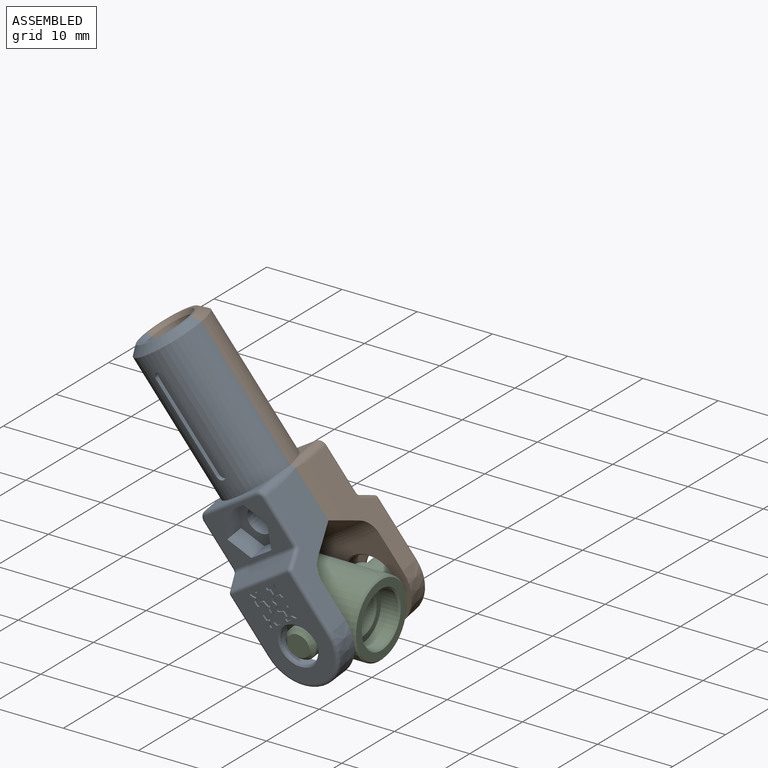
[diagram: assembled view]
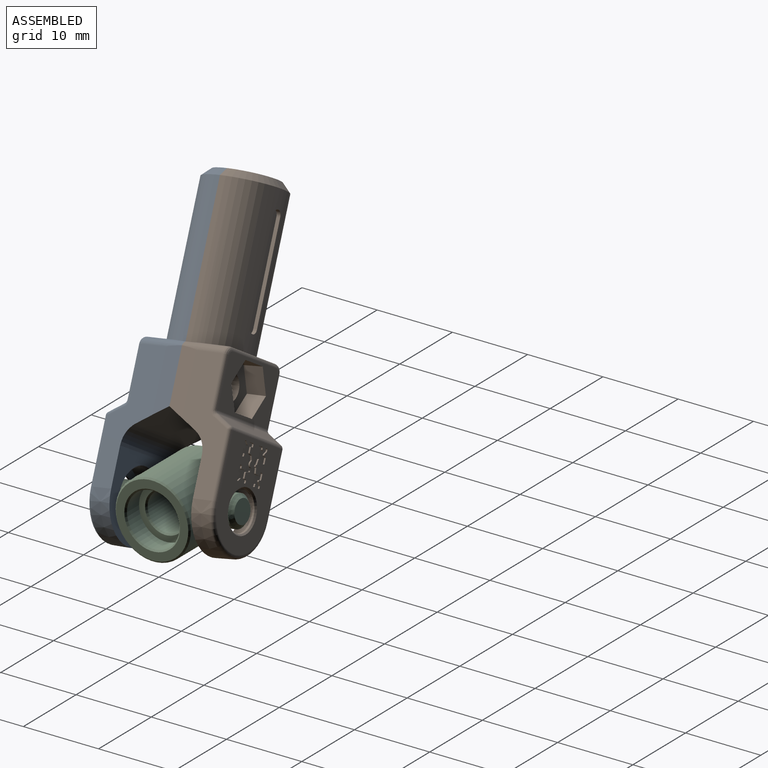
[diagram: assembled view, second angle]
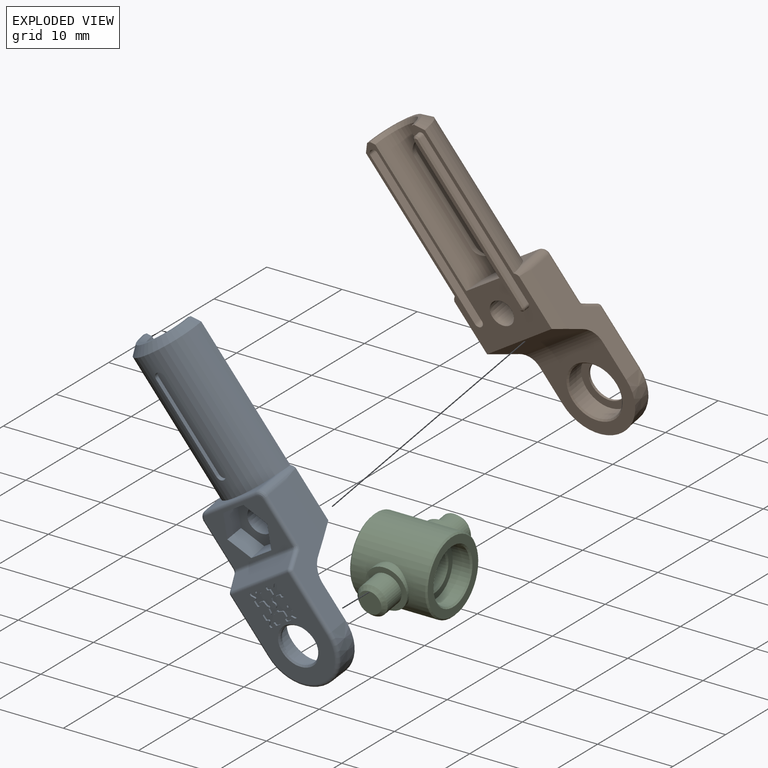
[diagram: exploded view]
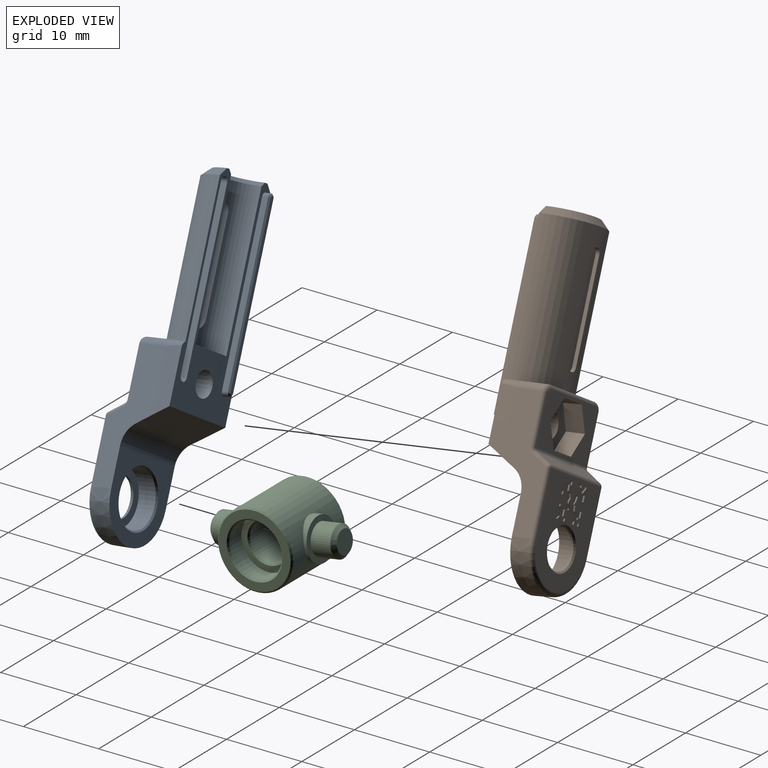
[diagram: exploded view, second angle]
ASSEMBLY  parts=3 mates=2
PART A: 228 faces, bbox 42.5x9.5x11.5 mm
  f0: plane 27x11mm, normal (0,-1,0), area 100.7mm2, adj f1,f2,f3,f4,f11,f16,f19,f20
  f1: plane 7.99x2mm, normal (0,0,1), area 14.6mm2, adj f0,f2,f9,f21
  f2: plane 11x2mm, normal (-0.87,-0.5,0), area 25.4mm2, adj f0,f1,f3,f14
  f3: plane 7.99x2mm, normal (0,0,-1), area 14.6mm2, adj f0,f2,f10,f20
  f4: plane 8x4mm, normal (1,0,0), area 5.9mm2, adj f0,f38,f39
  f5: cylinder r=3.5mm len=7mm, axis (0,-1,0), area 50.6mm2, adj f12,f60
  f6: plane 10.76x10.22mm, normal (0,-1,0), area 54.5mm2, adj f7,f9,f10,f58,f60
  f7: cone r=5.5mm half-angle=2deg, axis (0,-1,0), area 42.2mm2, adj f6,f9,f10,f28
  f8: plane 12.81x9.58mm, normal (0,1,0), area 79.8mm2, adj f23,f28,f31,f32,f59,f70,f71,f72
  f9: plane 16.24x6.04mm, normal (0,0.03,1), area 52.9mm2, adj f1,f6,f7,f14,f21,f23,f25,f26
  f10: plane 16.24x6.04mm, normal (0,0.03,-1), area 52.9mm2, adj f3,f6,f7,f14,f20,f32,f33,f36
  f11: cylinder r=3mm len=19.04mm, axis (1,0,0), area 134.4mm2, adj f0,f19,f38,f223,f224,f225,f226
  f12: plane 7x7mm, normal (0,-1,0), area 18.8mm2, adj f5,f13
  f13: cylinder r=2.5mm len=5mm, axis (0,1,0), area 4.7mm2, adj f12,f59
  f14: plane 11x2mm, normal (-0.87,-0.5,0), area 25.2mm2, adj f2,f9,f10,f58
  f15: plane 9.72x2mm, normal (0.87,0.5,0), area 22.3mm2, adj f26,f31,f34,f37
  f16: cylinder r=5mm len=18.63mm, axis (1,0,0), area 271.9mm2, adj f0,f18,f20,f21,f39,f65,f66,f67
  f17: plane 9.76x6.68mm, normal (0,1,0), area 35.1mm2, adj f22,f24,f25,f29,f33,f34,f40,f41
  f18: plane 8.99x3.31mm, normal (1,0,0), area 11.3mm2, adj f16,f20,f21,f24
  f19: plane 6x3mm, normal (1,0,0), area 14.1mm2, adj f0,f11
  f20: cylinder r=1mm len=5.57mm, axis (0,1,0.03), area 7.5mm2, adj f0,f3,f10,f16,f18,f29
  f21: cylinder r=1mm len=5.57mm, axis (0,-1,0.03), area 7.5mm2, adj f0,f1,f9,f16,f18,f22
  f22: bspline ~1x1mm, area 1mm2, adj f17,f21,f24,f25
  f23: cylinder r=0.5mm len=8.02mm, axis (1,0,0), area 6.2mm2, adj f8,f9,f27,f28
  f24: cylinder r=0.5mm len=8.75mm, axis (0,0,1), area 6.9mm2, adj f17,f18,f22,f29
  f25: cylinder r=0.5mm len=6.18mm, axis (-1,0,0), area 4.7mm2, adj f9,f17,f22,f30
  f26: cylinder r=0.5mm len=2.23mm, axis (-0.5,0.87,-0.03), area 1.8mm2, adj f9,f15,f27,f30
  f27: sphere r=0.5mm, area 0.3mm2, adj f23,f26,f31
  f28: torus R=4.79mm, axis (0,1,0), area 12.3mm2, adj f7,f8,f23,f32
  f29: bspline ~1.17x1.04mm, area 1mm2, adj f17,f20,f24,f33
  f30: bspline ~0.87x0.74mm, area 0.6mm2, adj f9,f25,f26,f34
  f31: cylinder r=0.5mm len=9.58mm, axis (0,0,-1), area 5mm2, adj f8,f15,f27,f35
  f32: cylinder r=0.5mm len=8.02mm, axis (-1,0,0), area 6.2mm2, adj f8,f10,f28,f35
  f33: cylinder r=0.5mm len=6.18mm, axis (-1,0,0), area 4.7mm2, adj f10,f17,f29,f36
  f34: cylinder r=0.5mm len=9.76mm, axis (0,0,-1), area 5.1mm2, adj f15,f17,f30,f36
  f35: sphere r=0.5mm, area 0.3mm2, adj f31,f32,f37
  f36: bspline ~0.87x0.73mm, area 0.6mm2, adj f10,f33,f34,f37
  f37: cylinder r=0.5mm len=2.23mm, axis (-0.5,0.87,0.03), area 1.8mm2, adj f10,f15,f35,f36
  f38: cone r=3mm half-angle=45deg, axis (1,0,0), area 7.2mm2, adj f0,f4,f11
  f39: cone r=4mm half-angle=45deg, axis (-1,0,0), area 20mm2, adj f0,f4,f16
  f40: plane 3.39x2.5mm, normal (-1,0.03,0), area 8.4mm2, adj f17,f41,f45,f46
  f41: plane 2.94x2.5mm, normal (-0.5,0.03,-0.87), area 8.4mm2, adj f17,f40,f42,f46
  f42: plane 2.94x2.5mm, normal (0.5,0.03,-0.87), area 8.4mm2, adj f17,f41,f43,f46
  f43: plane 3.39x2.5mm, normal (1,0.03,0), area 8.4mm2, adj f17,f42,f44,f46
  f44: plane 2.94x2.5mm, normal (0.5,0.03,0.87), area 8.4mm2, adj f17,f43,f45,f46
  f45: plane 2.94x2.5mm, normal (-0.5,0.03,0.87), area 8.4mm2, adj f17,f40,f44,f46
  f46: plane 6.58x5.7mm, normal (0,1,0), area 18.8mm2, adj f40,f41,f42,f43,f44,f45,f47
  f47: cone r=1.6mm half-angle=2deg, axis (0,1,0), area 36.6mm2, adj f0,f46
  f48: cone r=0.6mm half-angle=2deg, axis (0,-1,0), area 2.2mm2, adj f0,f49,f51,f52
  f49: plane 21.83x1.2mm, normal (0,-0.03,-1), area 26.2mm2, adj f0,f48,f50,f52
  f50: cone r=0.6mm half-angle=2deg, axis (0,-1,0), area 2.2mm2, adj f0,f49,f51,f52
  f51: plane 21.83x1.2mm, normal (0,-0.03,1), area 26.2mm2, adj f0,f48,f50,f52
  f52: plane 22.94x1.12mm, normal (0,-1,0), area 25.3mm2, adj f48,f49,f50,f51
  f53: cone r=0.5mm half-angle=2deg, axis (0,1,0), area 1.2mm2, adj f0,f54,f56,f62
  f54: plane 21.83x0.8mm, normal (0,-0.03,-1), area 17.5mm2, adj f0,f53,f55,f64
  f55: cone r=0.5mm half-angle=2deg, axis (0,1,0), area 1.2mm2, adj f0,f54,f56,f63
  f56: plane 21.83x0.8mm, normal (0,-0.03,1), area 17.5mm2, adj f0,f53,f55,f61
  f57: plane 22.34x0.52mm, normal (0,-1,0), area 11.5mm2, adj f61,f62,f63,f64
  f58: cylinder r=3mm len=10.86mm, axis (0,0,1), area 34mm2, adj f6,f9,f10,f14
  f59: cone r=2.5mm half-angle=45deg, axis (0,1,0), area 4.6mm2, adj f8,f13
  f60: cone r=3.7mm half-angle=45deg, axis (0,-1,0), area 6.4mm2, adj f5,f6
  f61: plane 21.83x0.21mm, normal (0,-0.73,0.68), area 6.4mm2, adj f56,f57,f62,f63
  f62: cone r=0.26mm half-angle=47deg, axis (0,1,0), area 0.3mm2, adj f53,f57,f61,f64
  f63: cone r=0.26mm half-angle=47deg, axis (0,1,0), area 0.3mm2, adj f55,f57,f61,f64
  f64: plane 21.83x0.21mm, normal (0,-0.73,-0.68), area 6.4mm2, adj f54,f57,f62,f63
  f65: cone r=0.75mm half-angle=2deg, axis (0,1,0), area 1.1mm2, adj f16,f66,f68,f69
  f66: plane 12.54x0.5mm, normal (0,0.03,1), area 6.3mm2, adj f16,f65,f67,f69
  f67: cone r=0.75mm half-angle=2deg, axis (0,1,0), area 1.1mm2, adj f16,f66,f68,f69
  f68: plane 12.54x0.5mm, normal (0,0.03,-1), area 6.3mm2, adj f16,f65,f67,f69
  f69: cylinder r=4.5mm len=13.93mm, axis (1,0,0), area 19mm2, adj f65,f66,f67,f68
  f70: cylinder r=0.06mm len=0.2mm, axis (0,1,0), area 0mm2, adj f8,f71,f221,f222
  f71: plane 0.2x0.15mm, normal (0,0,-1), area 0mm2, adj f8,f70,f72,f222
  f72: cylinder r=0.06mm len=0.2mm, axis (0,1,0), area 0mm2, adj f8,f71,f73,f222
  f73: plane 0.2x0.05mm, normal (-1,0,0), area 0mm2, adj f8,f72,f74,f222
  f74: cylinder r=0.06mm len=0.2mm, axis (0,1,0), area 0mm2, adj f8,f73,f75,f222
  f75: plane 0.57x0.2mm, normal (-0.19,0,-0.98), area 0.1mm2, adj f8,f74,f76,f222
  f76: cylinder r=0.15mm len=0.2mm, axis (0,1,0), area 0mm2, adj f8,f75,f77,f222
  f77: plane 0.6x0.2mm, normal (-1,0,0), area 0.1mm2, adj f8,f76,f78,f222
  f78: cylinder r=0.06mm len=0.2mm, axis (0,1,0), area 0mm2, adj f8,f77,f79,f222
  f79: plane 0.2x0.18mm, normal (0,0,1), area 0mm2, adj f8,f78,f80,f222
  f80: cylinder r=0.15mm len=0.2mm, axis (0,1,0), area 0mm2, adj f8,f79,f81,f222
  f81: plane 0.2x0.15mm, normal (-1,0,0), area 0mm2, adj f8,f80,f82,f222
  f82: cylinder r=0.15mm len=0.2mm, axis (0,1,0), area 0mm2, adj f8,f81,f83,f222
  f83: plane 0.54x0.2mm, normal (0,0,-1), area 0.1mm2, adj f8,f82,f84,f222
  f84: cylinder r=0.15mm len=0.2mm, axis (0,1,0), area 0mm2, adj f8,f83,f85,f222
  f85: plane 0.2x0.1mm, normal (1,0,0), area 0mm2, adj f8,f84,f86,f222
  f86: cylinder r=0.15mm len=0.26mm, axis (0,1,0), area 0.1mm2, adj f8,f85,f87,f222
  f87: plane 0.31x0.31mm, normal (-0.71,0,-0.71), area 0.1mm2, adj f8,f86,f88,f222
  f88: cylinder r=0.15mm len=0.2mm, axis (0,1,0), area 0mm2, adj f8,f87,f89,f222
  f89: plane 0.2x0.11mm, normal (0,0,-1), area 0mm2, adj f8,f88,f90,f222
  f90: cylinder r=0.15mm len=0.2mm, axis (0,1,0), area 0mm2, adj f8,f89,f91,f222
  f91: plane 0.2x0.11mm, normal (1,0,0), area 0mm2, adj f8,f90,f92,f222
  f92: cylinder r=0.15mm len=0.2mm, axis (0,1,0), area 0mm2, adj f8,f91,f93,f222
  f93: plane 0.31x0.31mm, normal (0.71,0,0.71), area 0.1mm2, adj f8,f92,f94,f222
  f94: cylinder r=0.15mm len=0.26mm, axis (0,1,0), area 0.1mm2, adj f8,f93,f95,f222
  f95: plane 0.2x0.1mm, normal (0,0,-1), area 0mm2, adj f8,f94,f96,f222
  f96: cylinder r=0.15mm len=0.2mm, axis (0,1,0), area 0mm2, adj f8,f95,f97,f222
  f97: plane 0.54x0.2mm, normal (1,0,0), area 0.1mm2, adj f8,f96,f98,f222
  f98: cylinder r=0.15mm len=0.2mm, axis (0,1,0), area 0mm2, adj f8,f97,f99,f222
  f99: plane 0.2x0.15mm, normal (0,0,1), area 0mm2, adj f8,f98,f100,f222
  f100: cylinder r=0.15mm len=0.2mm, axis (0,1,0), area 0mm2, adj f8,f99,f101,f222
  f101: plane 0.2x0.18mm, normal (-1,0,0), area 0mm2, adj f8,f100,f102,f222
  f102: cylinder r=0.06mm len=0.2mm, axis (0,1,0), area 0mm2, adj f8,f101,f103,f222
  f103: plane 0.6x0.2mm, normal (0,0,1), area 0.1mm2, adj f8,f102,f104,f222
  f104: cylinder r=0.15mm len=0.2mm, axis (0,1,0), area 0mm2, adj f8,f103,f105,f222
  f105: plane 0.57x0.2mm, normal (0.98,0,0.19), area 0.1mm2, adj f8,f104,f106,f222
  f106: cylinder r=0.06mm len=0.2mm, axis (0,1,0), area 0mm2, adj f8,f105,f107,f222
  f107: plane 0.2x0.05mm, normal (0,0,1), area 0mm2, adj f8,f106,f108,f222
  f108: cylinder r=0.06mm len=0.2mm, axis (0,1,0), area 0mm2, adj f8,f107,f109,f222
  f109: plane 0.2x0.15mm, normal (1,0,0), area 0mm2, adj f8,f108,f110,f222
  f110: cylinder r=0.06mm len=0.2mm, axis (0,1,0), area 0mm2, adj f8,f109,f111,f222
  f111: plane 0.2x0.05mm, normal (0,0,-1), area 0mm2, adj f8,f110,f112,f222
  f112: cylinder r=0.06mm len=0.2mm, axis (0,1,0), area 0mm2, adj f8,f111,f113,f222
  f113: plane 0.57x0.2mm, normal (0.98,0,-0.19), area 0.1mm2, adj f8,f112,f114,f222
  f114: cylinder r=0.15mm len=0.2mm, axis (0,1,0), area 0mm2, adj f8,f113,f115,f222
  f115: plane 0.6x0.2mm, normal (0,0,-1), area 0.1mm2, adj f8,f114,f116,f222
  f116: cylinder r=0.06mm len=0.2mm, axis (0,1,0), area 0mm2, adj f8,f115,f117,f222
  f117: plane 0.2x0.18mm, normal (-1,0,0), area 0mm2, adj f8,f116,f118,f222
  f118: cylinder r=0.15mm len=0.2mm, axis (0,1,0), area 0mm2, adj f8,f117,f119,f222
  f119: plane 0.2x0.15mm, normal (0,0,-1), area 0mm2, adj f8,f118,f120,f222
  f120: cylinder r=0.15mm len=0.2mm, axis (0,1,0), area 0mm2, adj f8,f119,f121,f222
  f121: plane 0.54x0.2mm, normal (1,0,0), area 0.1mm2, adj f8,f120,f122,f222
  f122: cylinder r=0.15mm len=0.2mm, axis (0,1,0), area 0mm2, adj f8,f121,f123,f222
  f123: plane 0.2x0.1mm, normal (0,0,1), area 0mm2, adj f8,f122,f124,f222
  f124: cylinder r=0.15mm len=0.26mm, axis (0,1,0), area 0.1mm2, adj f8,f123,f125,f222
  f125: plane 0.31x0.31mm, normal (0.71,0,-0.71), area 0.1mm2, adj f8,f124,f126,f222
  f126: cylinder r=0.15mm len=0.2mm, axis (0,1,0), area 0mm2, adj f8,f125,f127,f222
  f127: plane 0.2x0.11mm, normal (1,0,0), area 0mm2, adj f8,f126,f128,f222
  f128: cylinder r=0.15mm len=0.2mm, axis (0,1,0), area 0mm2, adj f8,f127,f129,f222
  f129: plane 0.2x0.11mm, normal (0,0,1), area 0mm2, adj f8,f128,f130,f222
  f130: cylinder r=0.15mm len=0.2mm, axis (0,1,0), area 0mm2, adj f8,f129,f131,f222
  f131: plane 0.31x0.31mm, normal (-0.71,0,0.71), area 0.1mm2, adj f8,f130,f132,f222
  f132: cylinder r=0.15mm len=0.26mm, axis (0,1,0), area 0.1mm2, adj f8,f131,f133,f222
  f133: plane 0.2x0.1mm, normal (1,0,0), area 0mm2, adj f8,f132,f134,f222
  f134: cylinder r=0.15mm len=0.2mm, axis (0,1,0), area 0mm2, adj f8,f133,f135,f222
  f135: plane 0.54x0.2mm, normal (0,0,1), area 0.1mm2, adj f8,f134,f136,f222
  f136: cylinder r=0.15mm len=0.2mm, axis (0,1,0), area 0mm2, adj f8,f135,f137,f222
  f137: plane 0.2x0.15mm, normal (-1,0,0), area 0mm2, adj f8,f136,f138,f222
  f138: cylinder r=0.15mm len=0.2mm, axis (0,1,0), area 0mm2, adj f8,f137,f139,f222
  f139: plane 0.2x0.18mm, normal (0,0,-1), area 0mm2, adj f8,f138,f140,f222
  f140: cylinder r=0.06mm len=0.2mm, axis (0,1,0), area 0mm2, adj f8,f139,f141,f222
  f141: plane 0.6x0.2mm, normal (-1,0,0), area 0.1mm2, adj f8,f140,f142,f222
  f142: cylinder r=0.15mm len=0.2mm, axis (0,1,0), area 0mm2, adj f8,f141,f143,f222
  f143: plane 0.57x0.2mm, normal (-0.19,0,0.98), area 0.1mm2, adj f8,f142,f144,f222
  f144: cylinder r=0.06mm len=0.2mm, axis (0,1,0), area 0mm2, adj f8,f143,f145,f222
  f145: plane 0.2x0.05mm, normal (-1,0,0), area 0mm2, adj f8,f144,f146,f222
  f146: cylinder r=0.06mm len=0.2mm, axis (0,1,0), area 0mm2, adj f8,f145,f147,f222
  f147: plane 0.2x0.15mm, normal (0,0,1), area 0mm2, adj f8,f146,f148,f222
  f148: cylinder r=0.06mm len=0.2mm, axis (0,1,0), area 0mm2, adj f8,f147,f149,f222
  f149: plane 0.2x0.05mm, normal (1,0,0), area 0mm2, adj f8,f148,f150,f222
  f150: cylinder r=0.06mm len=0.2mm, axis (0,1,0), area 0mm2, adj f8,f149,f151,f222
  f151: plane 0.57x0.2mm, normal (0.19,0,0.98), area 0.1mm2, adj f8,f150,f152,f222
  f152: cylinder r=0.15mm len=0.2mm, axis (0,1,0), area 0mm2, adj f8,f151,f153,f222
  f153: plane 0.6x0.2mm, normal (1,0,0), area 0.1mm2, adj f8,f152,f154,f222
  f154: cylinder r=0.06mm len=0.2mm, axis (0,1,0), area 0mm2, adj f8,f153,f155,f222
  f155: plane 0.2x0.18mm, normal (0,0,-1), area 0mm2, adj f8,f154,f156,f222
  f156: cylinder r=0.15mm len=0.2mm, axis (0,1,0), area 0mm2, adj f8,f155,f157,f222
  f157: plane 0.2x0.15mm, normal (1,0,0), area 0mm2, adj f8,f156,f158,f222
  f158: cylinder r=0.15mm len=0.2mm, axis (0,1,0), area 0mm2, adj f8,f157,f159,f222
  f159: plane 0.54x0.2mm, normal (0,0,1), area 0.1mm2, adj f8,f158,f160,f222
  f160: cylinder r=0.15mm len=0.2mm, axis (0,1,0), area 0mm2, adj f8,f159,f161,f222
  f161: plane 0.2x0.1mm, normal (-1,0,0), area 0mm2, adj f8,f160,f162,f222
  f162: cylinder r=0.15mm len=0.26mm, axis (0,1,0), area 0.1mm2, adj f8,f161,f163,f222
  f163: plane 0.31x0.31mm, normal (0.71,0,0.71), area 0.1mm2, adj f8,f162,f164,f222
  f164: cylinder r=0.15mm len=0.2mm, axis (0,1,0), area 0mm2, adj f8,f163,f165,f222
  f165: plane 0.2x0.11mm, normal (0,0,1), area 0mm2, adj f8,f164,f166,f222
  f166: cylinder r=0.15mm len=0.2mm, axis (0,1,0), area 0mm2, adj f8,f165,f167,f222
  f167: plane 0.2x0.11mm, normal (-1,0,0), area 0mm2, adj f8,f166,f168,f222
  f168: cylinder r=0.15mm len=0.2mm, axis (0,1,0), area 0mm2, adj f8,f167,f169,f222
  f169: plane 0.31x0.31mm, normal (-0.71,0,-0.71), area 0.1mm2, adj f8,f168,f170,f222
  f170: cylinder r=0.15mm len=0.26mm, axis (0,1,0), area 0.1mm2, adj f8,f169,f171,f222
  f171: plane 0.2x0.1mm, normal (0,0,1), area 0mm2, adj f8,f170,f172,f222
  f172: cylinder r=0.15mm len=0.2mm, axis (0,1,0), area 0mm2, adj f8,f171,f173,f222
  f173: plane 0.54x0.2mm, normal (-1,0,0), area 0.1mm2, adj f8,f172,f174,f222
  f174: cylinder r=0.15mm len=0.2mm, axis (0,1,0), area 0mm2, adj f8,f173,f175,f222
  f175: plane 0.2x0.15mm, normal (0,0,-1), area 0mm2, adj f8,f174,f176,f222
  f176: cylinder r=0.15mm len=0.2mm, axis (0,1,0), area 0mm2, adj f8,f175,f177,f222
  f177: plane 0.2x0.18mm, normal (1,0,0), area 0mm2, adj f8,f176,f178,f222
  f178: cylinder r=0.06mm len=0.2mm, axis (0,1,0), area 0mm2, adj f8,f177,f179,f222
  f179: plane 0.6x0.2mm, normal (0,0,-1), area 0.1mm2, adj f8,f178,f180,f222
  f180: cylinder r=0.15mm len=0.2mm, axis (0,1,0), area 0mm2, adj f8,f179,f181,f222
  f181: plane 0.24x0.2mm, normal (-0.98,0,-0.19), area 0mm2, adj f8,f180,f182,f222
  f182: cylinder r=0.15mm len=0.2mm, axis (0,1,0), area 0mm2, adj f8,f181,f183,f222
  f183: plane 0.38x0.2mm, normal (-0.42,0,-0.91), area 0.1mm2, adj f8,f182,f184,f222
  f184: cylinder r=0.15mm len=0.2mm, axis (0,1,0), area 0mm2, adj f8,f183,f185,f222
  f185: cylinder r=0.4mm len=0.81mm, axis (0,1,0), area 0.4mm2, adj f8,f184,f186,f222
  f186: cylinder r=0.15mm len=0.2mm, axis (0,1,0), area 0mm2, adj f8,f185,f187,f222
  f187: plane 0.38x0.2mm, normal (-0.42,0,0.91), area 0.1mm2, adj f8,f186,f188,f222
  f188: cylinder r=0.15mm len=0.2mm, axis (0,1,0), area 0mm2, adj f8,f187,f189,f222
  f189: plane 0.24x0.2mm, normal (-0.98,0,0.19), area 0mm2, adj f8,f188,f190,f222
  f190: cylinder r=0.15mm len=0.2mm, axis (0,1,0), area 0mm2, adj f8,f189,f191,f222
  f191: plane 0.6x0.2mm, normal (0,0,1), area 0.1mm2, adj f8,f190,f192,f222
  f192: cylinder r=0.06mm len=0.2mm, axis (0,1,0), area 0mm2, adj f8,f191,f193,f222
  f193: plane 0.2x0.18mm, normal (1,0,0), area 0mm2, adj f8,f192,f194,f222
  f194: cylinder r=0.15mm len=0.2mm, axis (0,1,0), area 0mm2, adj f8,f193,f195,f222
  f195: plane 0.2x0.15mm, normal (0,0,1), area 0mm2, adj f8,f194,f196,f222
  f196: cylinder r=0.15mm len=0.2mm, axis (0,1,0), area 0mm2, adj f8,f195,f197,f222
  f197: plane 0.54x0.2mm, normal (-1,0,0), area 0.1mm2, adj f8,f196,f198,f222
  f198: cylinder r=0.15mm len=0.2mm, axis (0,1,0), area 0mm2, adj f8,f197,f199,f222
  f199: plane 0.2x0.1mm, normal (0,0,-1), area 0mm2, adj f8,f198,f200,f222
  f200: cylinder r=0.15mm len=0.26mm, axis (0,1,0), area 0.1mm2, adj f8,f199,f201,f222
  f201: plane 0.31x0.31mm, normal (-0.71,0,0.71), area 0.1mm2, adj f8,f200,f202,f222
  f202: cylinder r=0.15mm len=0.2mm, axis (0,1,0), area 0mm2, adj f8,f201,f203,f222
  f203: plane 0.2x0.11mm, normal (-1,0,0), area 0mm2, adj f8,f202,f204,f222
  f204: cylinder r=0.15mm len=0.2mm, axis (0,1,0), area 0mm2, adj f8,f203,f205,f222
  f205: plane 0.2x0.11mm, normal (0,0,-1), area 0mm2, adj f8,f204,f206,f222
  f206: cylinder r=0.15mm len=0.2mm, axis (0,1,0), area 0mm2, adj f8,f205,f207,f222
  f207: plane 0.31x0.31mm, normal (0.71,0,-0.71), area 0.1mm2, adj f8,f206,f208,f222
  f208: cylinder r=0.15mm len=0.26mm, axis (0,1,0), area 0.1mm2, adj f8,f207,f209,f222
  f209: plane 0.2x0.1mm, normal (-1,0,0), area 0mm2, adj f8,f208,f210,f222
  f210: cylinder r=0.15mm len=0.2mm, axis (0,1,0), area 0mm2, adj f8,f209,f211,f222
  f211: plane 0.54x0.2mm, normal (0,0,-1), area 0.1mm2, adj f8,f210,f212,f222
  f212: cylinder r=0.15mm len=0.2mm, axis (0,1,0), area 0mm2, adj f8,f211,f213,f222
  f213: plane 0.2x0.15mm, normal (1,0,0), area 0mm2, adj f8,f212,f214,f222
  f214: cylinder r=0.15mm len=0.2mm, axis (0,1,0), area 0mm2, adj f8,f213,f215,f222
  f215: plane 0.2x0.18mm, normal (0,0,1), area 0mm2, adj f8,f214,f216,f222
  f216: cylinder r=0.06mm len=0.2mm, axis (0,1,0), area 0mm2, adj f8,f215,f217,f222
  f217: plane 0.6x0.2mm, normal (1,0,0), area 0.1mm2, adj f8,f216,f218,f222
  f218: cylinder r=0.15mm len=0.2mm, axis (0,1,0), area 0mm2, adj f8,f217,f219,f222
  f219: plane 0.57x0.2mm, normal (0.19,0,-0.98), area 0.1mm2, adj f8,f218,f220,f222
  f220: cylinder r=0.06mm len=0.2mm, axis (0,1,0), area 0mm2, adj f8,f219,f221,f222
  f221: plane 0.2x0.05mm, normal (1,0,0), area 0mm2, adj f8,f70,f220,f222
  f222: plane 4.5x4.5mm, normal (0,1,0), area 10.2mm2, adj f70,f71,f72,f73,f74,f75,f76,f77
  f223: cylinder r=1.5mm len=3mm, axis (0,-1,0), area 2.3mm2, adj f11,f224,f226,f227
  f224: plane 12x0.7mm, normal (0,0,-1), area 8.4mm2, adj f11,f223,f225,f227
  f225: cylinder r=1.5mm len=3mm, axis (0,-1,0), area 2.3mm2, adj f11,f224,f226,f227
  f226: plane 12x0.7mm, normal (0,0,1), area 8.4mm2, adj f11,f223,f225,f227
  f227: plane 15x3mm, normal (0,-1,0), area 43.1mm2, adj f223,f224,f225,f226
PART B: same geometry as A
PART C: 24 faces, bbox 17x10x10.3 mm
  f0: plane 5.5x5.5mm, normal (1,0,0), area 11.2mm2, adj f6,f14
  f1: plane 5.5x5.5mm, normal (-1,0,0), area 11.2mm2, adj f7,f12
  f2: cylinder r=2.5mm len=5mm, axis (0,0,-1), area 77mm2, adj f18,f19
  f3: cylinder r=5mm len=10mm, axis (0,0,-1), area 261.4mm2, adj f6,f7,f21,f22
  f4: plane 9.6x9.6mm, normal (0,0,1), area 29.4mm2, adj f20,f21
  f5: plane 9.6x9.6mm, normal (0,0,-1), area 29.4mm2, adj f22,f23
  f6: cylinder r=2.75mm len=5.5mm, axis (-1,0,0), area 13mm2, adj f0,f3
  f7: cylinder r=2.75mm len=5.5mm, axis (-1,0,0), area 13mm2, adj f1,f3
  f8: cylinder r=3.5mm len=7mm, axis (0,0,1), area 50.6mm2, adj f9,f20
  f9: plane 7x7mm, normal (0,0,1), area 15.6mm2, adj f8,f18
  f10: cylinder r=3.5mm len=7mm, axis (0,0,-1), area 50.6mm2, adj f11,f23
  f11: plane 7x7mm, normal (0,0,-1), area 15.6mm2, adj f10,f19
  f12: cylinder r=2mm len=4mm, axis (1,0,0), area 33.3mm2, adj f1,f17
  f13: plane 3x3mm, normal (-1,0,0), area 7.1mm2, adj f17
  f14: cylinder r=2mm len=4mm, axis (-1,0,0), area 33.3mm2, adj f0,f16
  f15: plane 3x3mm, normal (1,0,0), area 7.1mm2, adj f16
  f16: cone r=1.5mm half-angle=45deg, axis (-1,0,0), area 7.8mm2, adj f14,f15
  f17: cone r=1.5mm half-angle=45deg, axis (1,0,0), area 7.8mm2, adj f12,f13
  f18: cone r=2.5mm half-angle=45deg, axis (0,0,1), area 4.6mm2, adj f2,f9
  f19: cone r=2.5mm half-angle=45deg, axis (0,0,-1), area 4.6mm2, adj f2,f11
  f20: cone r=3.5mm half-angle=45deg, axis (0,0,1), area 6.4mm2, adj f4,f8
  f21: cone r=4.8mm half-angle=45deg, axis (0,0,-1), area 8.7mm2, adj f3,f4
  f22: cone r=5mm half-angle=45deg, axis (0,0,1), area 8.7mm2, adj f3,f5
  f23: cone r=3.5mm half-angle=45deg, axis (0,0,-1), area 6.4mm2, adj f5,f10
PLACE A rot(axis=(-0.48,0.07,-0.88),175.6deg) t=(26.1,-35.43,-38.57)mm
PLACE B rot(axis=(0.04,-1,-0.08),122.9deg) t=(26.1,-24.57,-36.83)mm
PLACE C rot(axis=(0.61,0.52,0.61),125.4deg) t=(26.11,-30,-37.7)mm
MATE revolute A.f5 <-> C.f6  axis (0,-0.99,-0.16) through (26.1,-38.39,-39.05)mm
MATE fastened A.f47 <-> B.f47  axis (0,-0.99,-0.16) through (18.84,-31.79,-26.55)mm
